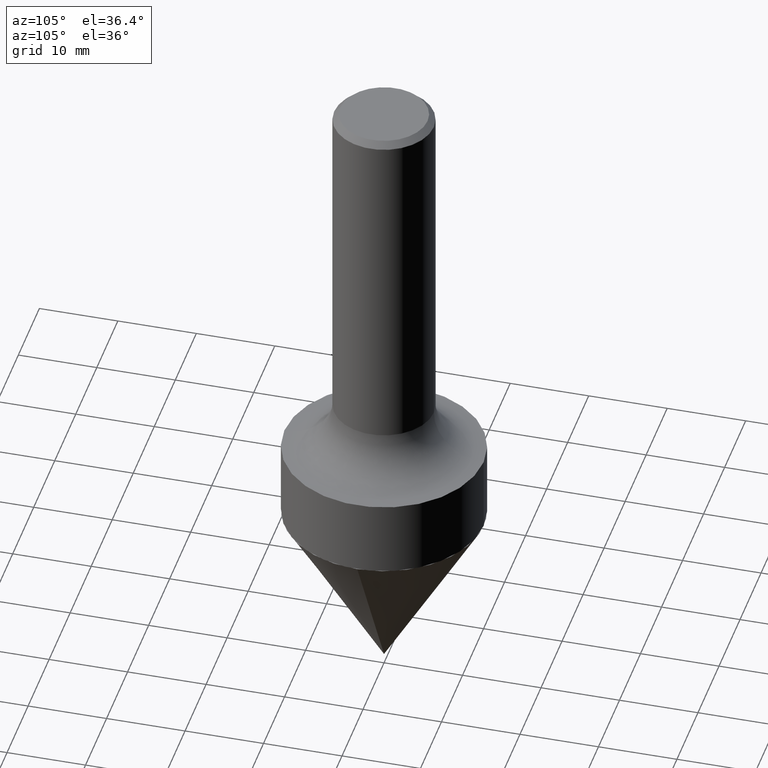
[diagram: clean part render]
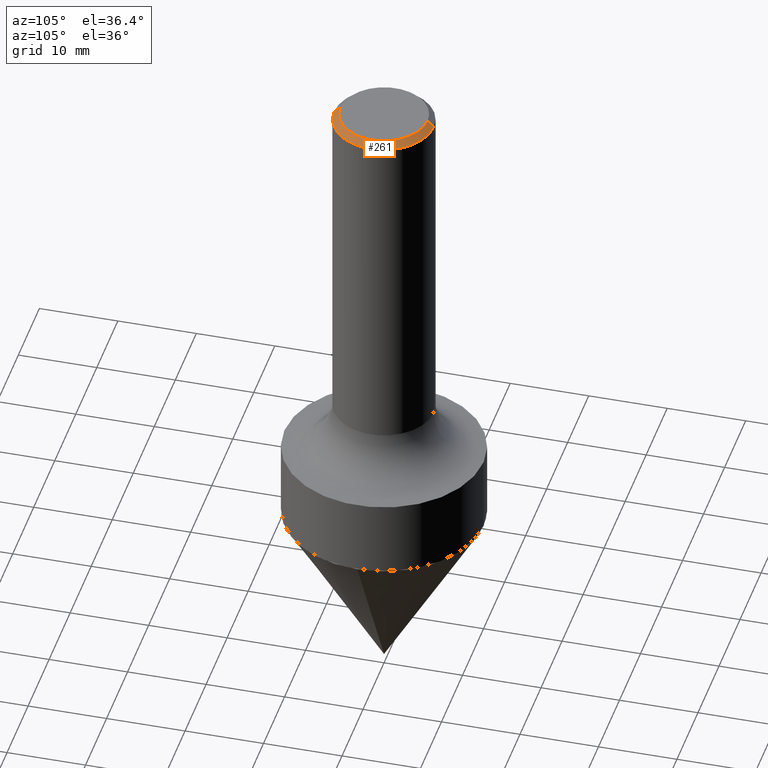
[diagram: same view with one face highlighted and labeled with its STEP entity id]
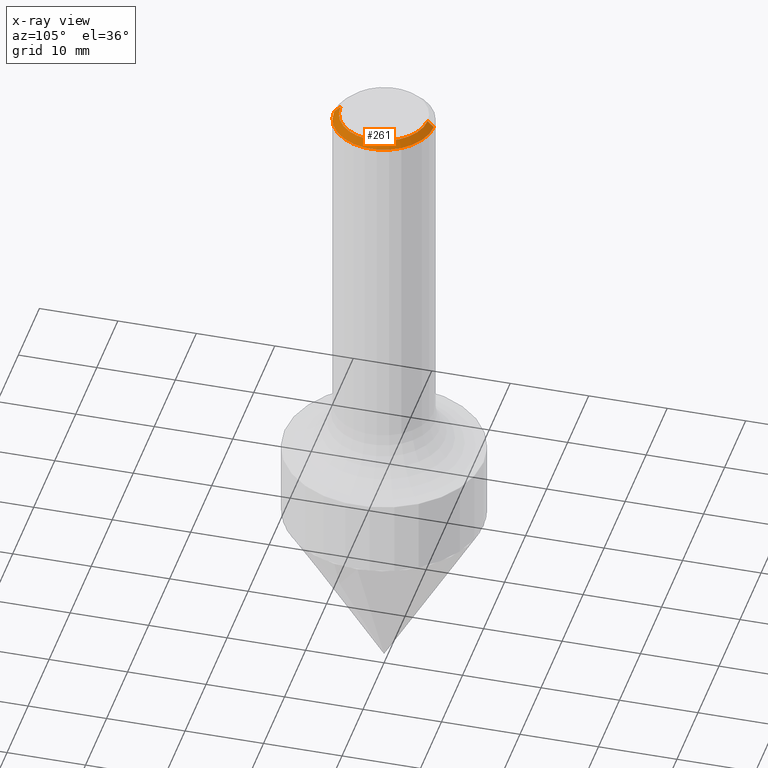
[diagram: x-ray of the same camera — body ghosted, the highlighted face saturated]
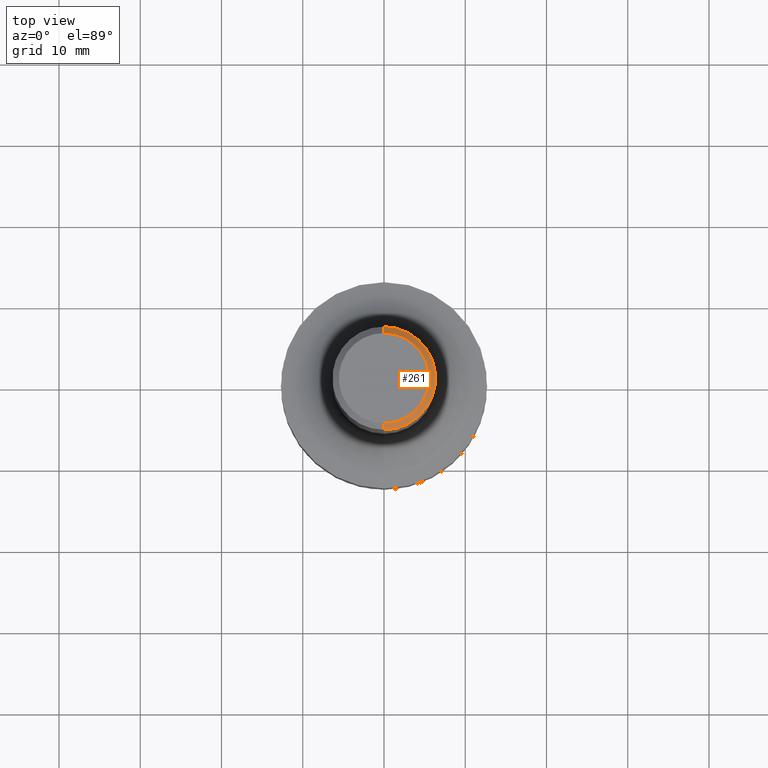
[diagram: same view with one face highlighted and labeled with its STEP entity id]
A machine part, auxiliary view. The second image highlights one B-rep face of the part: STEP entity #261.
The next image is the same camera in x-ray: the body ghosted, the highlighted face saturated — about 0% of this face is hidden behind the body in this view.
A second angle (top view) of the same face is appended — the face is thin or edge-on in the first view.
In plain terms, the highlighted conical surface has half-angle 45 deg.
Its self-contained STEP definition (entity closure, byte-faithful):
#1 = ORIENTED_EDGE ( 'NONE', *, *, #42, .T. ) ;
#22 = DIRECTION ( 'NONE',  ( 2.426805345035298041E-29, -3.518208477467954013E-15, -1.000000000000000000 ) ) ;
#30 = CARTESIAN_POINT ( 'NONE',  ( -3.276658119362871831E-46, 4.750264126824306074E-32, 1.350194042577903107E-17 ) ) ;
#42 = EDGE_CURVE ( 'NONE', #204, #393, #74, .T. ) ;
#45 = DIRECTION ( 'NONE',  ( -4.851104656540946920E-15, -0.7071067811865474617, -0.7071067811865475727 ) ) ;
#47 = VERTEX_POINT ( 'NONE', #417 ) ;
#74 = LINE ( 'NONE', #300, #321 ) ;
#104 = DIRECTION ( 'NONE',  ( -6.982962677686265922E-15, -1.000000000000000000, 3.518208477467954013E-15 ) ) ;
#143 = CARTESIAN_POINT ( 'NONE',  ( -1.608100730677646216E-15, -0.2187999999999999945, 7.832859552957674143E-16 ) ) ;
#167 = AXIS2_PLACEMENT_3D ( 'NONE', #30, #333, #104 ) ;
#178 = CARTESIAN_POINT ( 'NONE',  ( 7.571632676510179353E-31, -1.097681044970008795E-16, -0.03120000000000020327 ) ) ;
#183 = DIRECTION ( 'NONE',  ( 4.937700262164529898E-15, 0.7071067811865425767, -0.7071067811865524577 ) ) ;
#204 = VERTEX_POINT ( 'NONE', #143 ) ;
#219 = LINE ( 'NONE', #376, #441 ) ;
#242 = EDGE_LOOP ( 'NONE', ( #331, #1, #464, #446 ) ) ;
#249 = CARTESIAN_POINT ( 'NONE',  ( 1.745740669421567269E-15, 0.2499999999999998890, -0.03120000000000108104 ) ) ;
#261 = ADVANCED_FACE ( 'NONE', ( #324 ), #282, .T. ) ;
#266 = DIRECTION ( 'NONE',  ( -2.426805345035298041E-29, 3.518208477467954013E-15, 1.000000000000000000 ) ) ;
#282 = CONICAL_SURFACE ( 'NONE', #335, 0.2500000000000000000, 0.7853981633974447263 ) ;
#293 = DIRECTION ( 'NONE',  ( -6.982962677686265922E-15, -1.000000000000000000, 3.517254291842738968E-15 ) ) ;
#295 = AXIS2_PLACEMENT_3D ( 'NONE', #452, #266, #293 ) ;
#300 = CARTESIAN_POINT ( 'NONE',  ( -1.715124499442881905E-15, -0.2500000000000001110, -0.03119999999999932203 ) ) ;
#321 = VECTOR ( 'NONE', #45, 39.37007874015748143 ) ;
#324 = FACE_OUTER_BOUND ( 'NONE', #242, .T. ) ;
#328 = VERTEX_POINT ( 'NONE', #249 ) ;
#331 = ORIENTED_EDGE ( 'NONE', *, *, #472, .F. ) ;
#333 = DIRECTION ( 'NONE',  ( -2.426805345035298041E-29, 3.518208477467954013E-15, 1.000000000000000000 ) ) ;
#335 = AXIS2_PLACEMENT_3D ( 'NONE', #178, #22, #397 ) ;
#376 = CARTESIAN_POINT ( 'NONE',  ( 1.745740669421567269E-15, 0.2499999999999998890, -0.03120000000000108104 ) ) ;
#393 = VERTEX_POINT ( 'NONE', #449 ) ;
#395 = CIRCLE ( 'NONE', #295, 0.2500000000000000000 ) ;
#397 = DIRECTION ( 'NONE',  ( 6.982962677686265922E-15, 1.000000000000000000, -3.517254291842738968E-15 ) ) ;
#417 = CARTESIAN_POINT ( 'NONE',  ( 1.636806451649661108E-15, 0.2187999999999999945, -7.562820744442092875E-16 ) ) ;
#422 = EDGE_CURVE ( 'NONE', #393, #328, #395, .T. ) ;
#441 = VECTOR ( 'NONE', #183, 39.37007874015748143 ) ;
#446 = ORIENTED_EDGE ( 'NONE', *, *, #478, .F. ) ;
#449 = CARTESIAN_POINT ( 'NONE',  ( -1.715124499442881905E-15, -0.2500000000000001110, -0.03119999999999932203 ) ) ;
#452 = CARTESIAN_POINT ( 'NONE',  ( 7.571632676510179353E-31, -1.097681044970008795E-16, -0.03120000000000020327 ) ) ;
#464 = ORIENTED_EDGE ( 'NONE', *, *, #422, .T. ) ;
#467 = CIRCLE ( 'NONE', #167, 0.2187999999999999945 ) ;
#472 = EDGE_CURVE ( 'NONE', #204, #47, #467, .T. ) ;
#478 = EDGE_CURVE ( 'NONE', #47, #328, #219, .T. ) ;